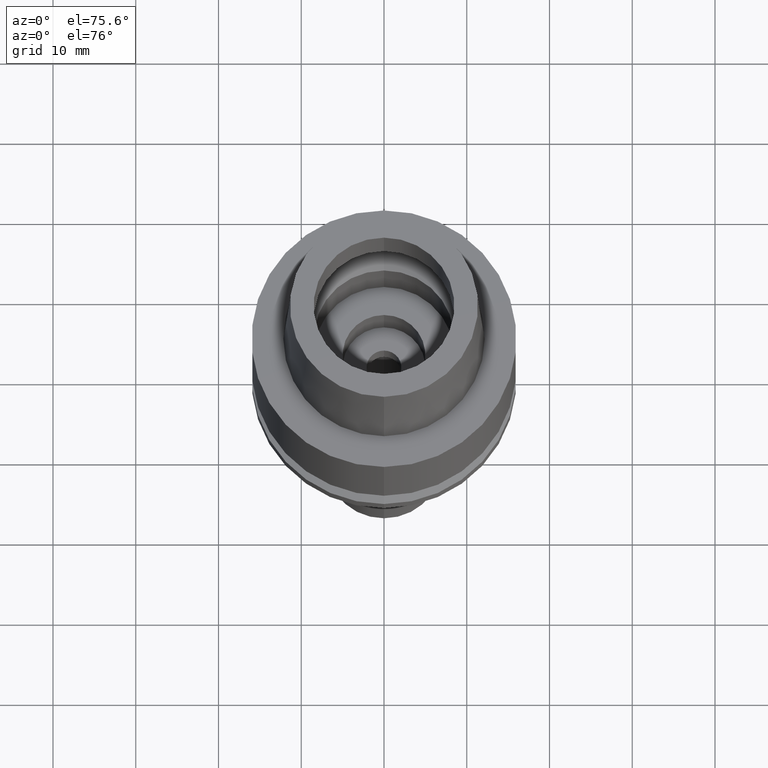
[diagram: clean part render]
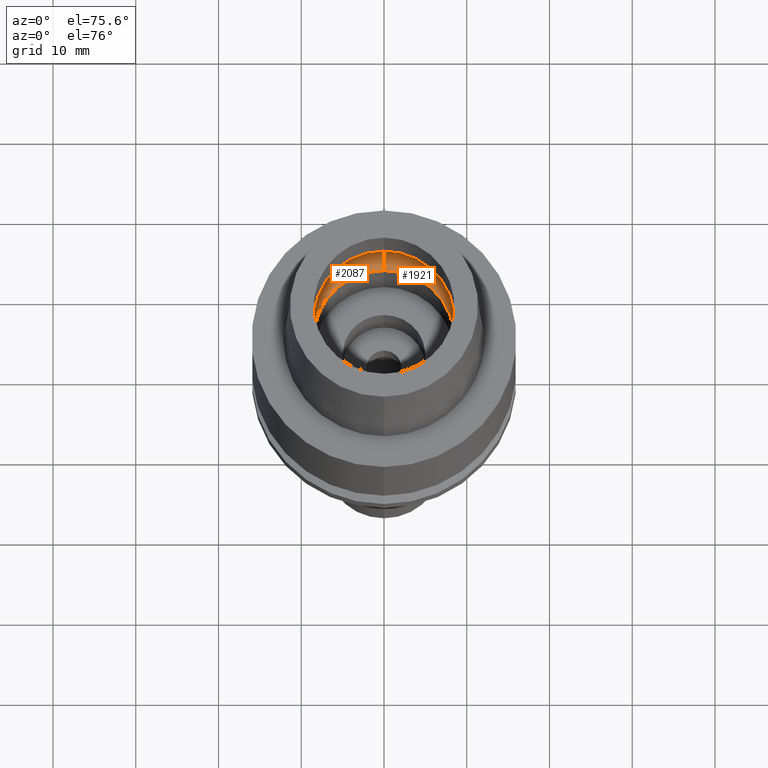
[diagram: same view with one multi-face feature highlighted, each face labeled with its STEP entity id]
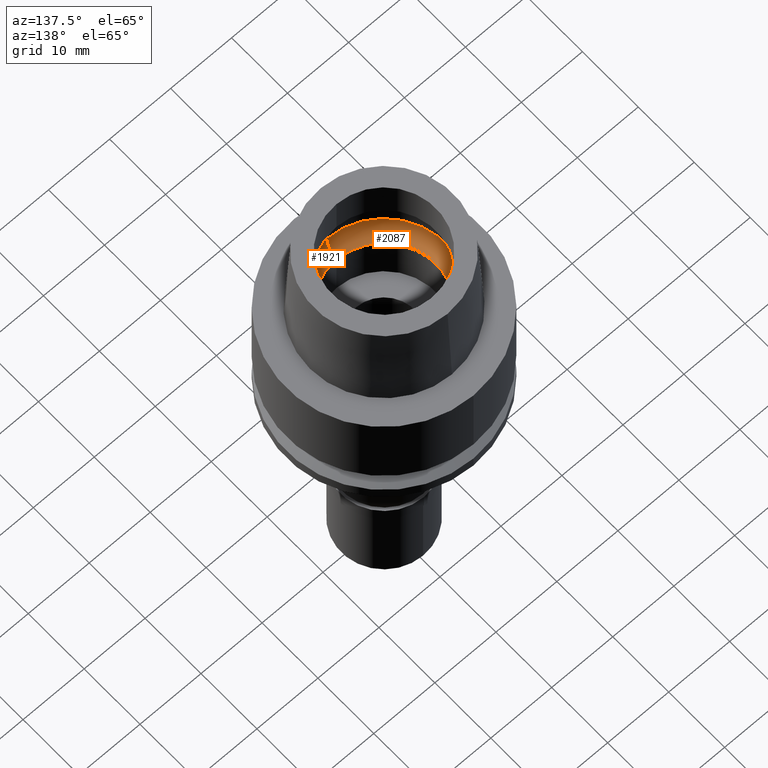
[diagram: same view with one multi-face feature highlighted, each face labeled with its STEP entity id]
A machine part, auxiliary view. The highlighted faces form ONE feature: a constant-radius fillet chain: 2 tangent blend faces with common blend radius 4 mm. The faces share edges in the B-rep.
A second angle (auxiliary view) of the same feature is appended — it is thin or edge-on in the first view.
Their STEP definitions:
[1] entity #2087 (Torus):
#35 = EDGE_CURVE ( 'NONE', #641, #2018, #671, .T. ) ;
#325 = VERTEX_POINT ( 'NONE', #2398 ) ;
#389 = DIRECTION ( 'NONE',  ( 0.0000000000000000000, -1.000000000000000000, 0.0000000000000000000 ) ) ;
#513 = DIRECTION ( 'NONE',  ( -1.000000000000000000, 0.0000000000000000000, 0.0000000000000000000 ) ) ;
#526 = DIRECTION ( 'NONE',  ( 0.0000000000000000000, -0.5624999999999932276, -0.8267972847076892062 ) ) ;
#537 = CARTESIAN_POINT ( 'NONE',  ( 0.0000000000000000000, 8.500000000000000000, 0.04981086116925999979 ) ) ;
#571 = DIRECTION ( 'NONE',  ( 0.0000000000000000000, -1.000000000000000000, 0.0000000000000000000 ) ) ;
#621 = ORIENTED_EDGE ( 'NONE', *, *, #911, .F. ) ;
#641 = VERTEX_POINT ( 'NONE', #537 ) ;
#671 = CIRCLE ( 'NONE', #2111, 3.999999999999999112 ) ;
#675 = AXIS2_PLACEMENT_3D ( 'NONE', #2378, #513, #526 ) ;
#812 = CARTESIAN_POINT ( 'NONE',  ( 0.0000000000000000000, 10.25000000000000000, 3.357000000000000206 ) ) ;
#911 = EDGE_CURVE ( 'NONE', #641, #325, #2072, .T. ) ;
#941 = AXIS2_PLACEMENT_3D ( 'NONE', #2255, #1849, #389 ) ;
#996 = ORIENTED_EDGE ( 'NONE', *, *, #1884, .F. ) ;
#1001 = CARTESIAN_POINT ( 'NONE',  ( 0.0000000000000000000, -10.25000000000000000, 3.357000000000000206 ) ) ;
#1122 = EDGE_LOOP ( 'NONE', ( #996, #2112, #621, #1876 ) ) ;
#1322 = DIRECTION ( 'NONE',  ( 1.000000000000000000, 0.0000000000000000000, 0.0000000000000000000 ) ) ;
#1409 = CARTESIAN_POINT ( 'NONE',  ( 0.0000000000000000000, 6.250000000000000000, 3.357000000000000206 ) ) ;
#1417 = VERTEX_POINT ( 'NONE', #1001 ) ;
#1604 = CIRCLE ( 'NONE', #675, 3.999999999999999112 ) ;
#1630 = FACE_OUTER_BOUND ( 'NONE', #1122, .T. ) ;
#1645 = CIRCLE ( 'NONE', #2690, 10.25000000000000000 ) ;
#1849 = DIRECTION ( 'NONE',  ( 0.0000000000000000000, 0.0000000000000000000, -1.000000000000000000 ) ) ;
#1876 = ORIENTED_EDGE ( 'NONE', *, *, #35, .T. ) ;
#1884 = EDGE_CURVE ( 'NONE', #1417, #2018, #1645, .T. ) ;
#1910 = DIRECTION ( 'NONE',  ( 0.0000000000000000000, 0.0000000000000000000, 1.000000000000000000 ) ) ;
#2018 = VERTEX_POINT ( 'NONE', #812 ) ;
#2072 = CIRCLE ( 'NONE', #2416, 8.500000000000000000 ) ;
#2087 = ADVANCED_FACE ( 'NONE', ( #1630 ), #2506, .F. ) ;
#2111 = AXIS2_PLACEMENT_3D ( 'NONE', #1409, #1322, #2154 ) ;
#2112 = ORIENTED_EDGE ( 'NONE', *, *, #2405, .F. ) ;
#2123 = CARTESIAN_POINT ( 'NONE',  ( 0.0000000000000000000, 0.0000000000000000000, 0.04981086116925999979 ) ) ;
#2154 = DIRECTION ( 'NONE',  ( 0.0000000000000000000, 0.5624999999999932276, -0.8267972847076892062 ) ) ;
#2175 = DIRECTION ( 'NONE',  ( 0.0000000000000000000, 0.0000000000000000000, -1.000000000000000000 ) ) ;
#2255 = CARTESIAN_POINT ( 'NONE',  ( 0.0000000000000000000, 0.0000000000000000000, 3.357000000000000206 ) ) ;
#2281 = DIRECTION ( 'NONE',  ( 0.0000000000000000000, 1.000000000000000000, 0.0000000000000000000 ) ) ;
#2378 = CARTESIAN_POINT ( 'NONE',  ( 0.0000000000000000000, -6.250000000000000000, 3.357000000000000206 ) ) ;
#2398 = CARTESIAN_POINT ( 'NONE',  ( 0.0000000000000000000, -8.500000000000000000, 0.04981086116925999979 ) ) ;
#2405 = EDGE_CURVE ( 'NONE', #325, #1417, #1604, .T. ) ;
#2416 = AXIS2_PLACEMENT_3D ( 'NONE', #2123, #1910, #2281 ) ;
#2506 = TOROIDAL_SURFACE ( 'NONE', #941, 6.250000000000000000, 4.000000000000000000 ) ;
#2628 = CARTESIAN_POINT ( 'NONE',  ( 0.0000000000000000000, 0.0000000000000000000, 3.357000000000000206 ) ) ;
#2690 = AXIS2_PLACEMENT_3D ( 'NONE', #2628, #2175, #571 ) ;
[2] entity #1921 (Torus):
#35 = EDGE_CURVE ( 'NONE', #641, #2018, #671, .T. ) ;
#70 = EDGE_CURVE ( 'NONE', #325, #641, #322, .T. ) ;
#312 = DIRECTION ( 'NONE',  ( 0.0000000000000000000, 0.0000000000000000000, -1.000000000000000000 ) ) ;
#322 = CIRCLE ( 'NONE', #410, 8.500000000000000000 ) ;
#325 = VERTEX_POINT ( 'NONE', #2398 ) ;
#410 = AXIS2_PLACEMENT_3D ( 'NONE', #1736, #552, #2634 ) ;
#442 = ORIENTED_EDGE ( 'NONE', *, *, #1423, .F. ) ;
#513 = DIRECTION ( 'NONE',  ( -1.000000000000000000, 0.0000000000000000000, 0.0000000000000000000 ) ) ;
#526 = DIRECTION ( 'NONE',  ( 0.0000000000000000000, -0.5624999999999932276, -0.8267972847076892062 ) ) ;
#537 = CARTESIAN_POINT ( 'NONE',  ( 0.0000000000000000000, 8.500000000000000000, 0.04981086116925999979 ) ) ;
#552 = DIRECTION ( 'NONE',  ( 0.0000000000000000000, 0.0000000000000000000, 1.000000000000000000 ) ) ;
#565 = CARTESIAN_POINT ( 'NONE',  ( 0.0000000000000000000, 0.0000000000000000000, 3.357000000000000206 ) ) ;
#641 = VERTEX_POINT ( 'NONE', #537 ) ;
#671 = CIRCLE ( 'NONE', #2111, 3.999999999999999112 ) ;
#675 = AXIS2_PLACEMENT_3D ( 'NONE', #2378, #513, #526 ) ;
#812 = CARTESIAN_POINT ( 'NONE',  ( 0.0000000000000000000, 10.25000000000000000, 3.357000000000000206 ) ) ;
#890 = AXIS2_PLACEMENT_3D ( 'NONE', #927, #312, #962 ) ;
#927 = CARTESIAN_POINT ( 'NONE',  ( 0.0000000000000000000, 0.0000000000000000000, 3.357000000000000206 ) ) ;
#929 = AXIS2_PLACEMENT_3D ( 'NONE', #565, #1635, #2024 ) ;
#931 = EDGE_LOOP ( 'NONE', ( #2410, #2451, #442, #2406 ) ) ;
#962 = DIRECTION ( 'NONE',  ( 0.0000000000000000000, -1.000000000000000000, 0.0000000000000000000 ) ) ;
#1001 = CARTESIAN_POINT ( 'NONE',  ( 0.0000000000000000000, -10.25000000000000000, 3.357000000000000206 ) ) ;
#1022 = TOROIDAL_SURFACE ( 'NONE', #890, 6.250000000000000000, 4.000000000000000000 ) ;
#1322 = DIRECTION ( 'NONE',  ( 1.000000000000000000, 0.0000000000000000000, 0.0000000000000000000 ) ) ;
#1409 = CARTESIAN_POINT ( 'NONE',  ( 0.0000000000000000000, 6.250000000000000000, 3.357000000000000206 ) ) ;
#1417 = VERTEX_POINT ( 'NONE', #1001 ) ;
#1423 = EDGE_CURVE ( 'NONE', #2018, #1417, #2463, .T. ) ;
#1604 = CIRCLE ( 'NONE', #675, 3.999999999999999112 ) ;
#1635 = DIRECTION ( 'NONE',  ( 0.0000000000000000000, 0.0000000000000000000, -1.000000000000000000 ) ) ;
#1736 = CARTESIAN_POINT ( 'NONE',  ( 0.0000000000000000000, 0.0000000000000000000, 0.04981086116925999979 ) ) ;
#1921 = ADVANCED_FACE ( 'NONE', ( #2005 ), #1022, .F. ) ;
#2005 = FACE_OUTER_BOUND ( 'NONE', #931, .T. ) ;
#2018 = VERTEX_POINT ( 'NONE', #812 ) ;
#2024 = DIRECTION ( 'NONE',  ( 0.0000000000000000000, 1.000000000000000000, 0.0000000000000000000 ) ) ;
#2111 = AXIS2_PLACEMENT_3D ( 'NONE', #1409, #1322, #2154 ) ;
#2154 = DIRECTION ( 'NONE',  ( 0.0000000000000000000, 0.5624999999999932276, -0.8267972847076892062 ) ) ;
#2378 = CARTESIAN_POINT ( 'NONE',  ( 0.0000000000000000000, -6.250000000000000000, 3.357000000000000206 ) ) ;
#2398 = CARTESIAN_POINT ( 'NONE',  ( 0.0000000000000000000, -8.500000000000000000, 0.04981086116925999979 ) ) ;
#2405 = EDGE_CURVE ( 'NONE', #325, #1417, #1604, .T. ) ;
#2406 = ORIENTED_EDGE ( 'NONE', *, *, #35, .F. ) ;
#2410 = ORIENTED_EDGE ( 'NONE', *, *, #70, .F. ) ;
#2451 = ORIENTED_EDGE ( 'NONE', *, *, #2405, .T. ) ;
#2463 = CIRCLE ( 'NONE', #929, 10.25000000000000000 ) ;
#2634 = DIRECTION ( 'NONE',  ( 0.0000000000000000000, -1.000000000000000000, 0.0000000000000000000 ) ) ;